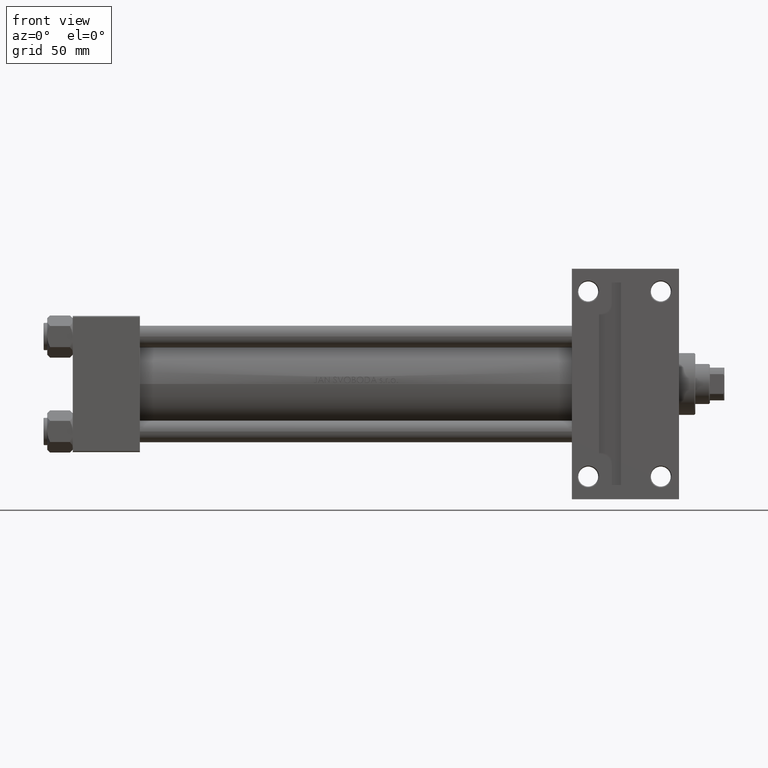
[diagram: clean part render]
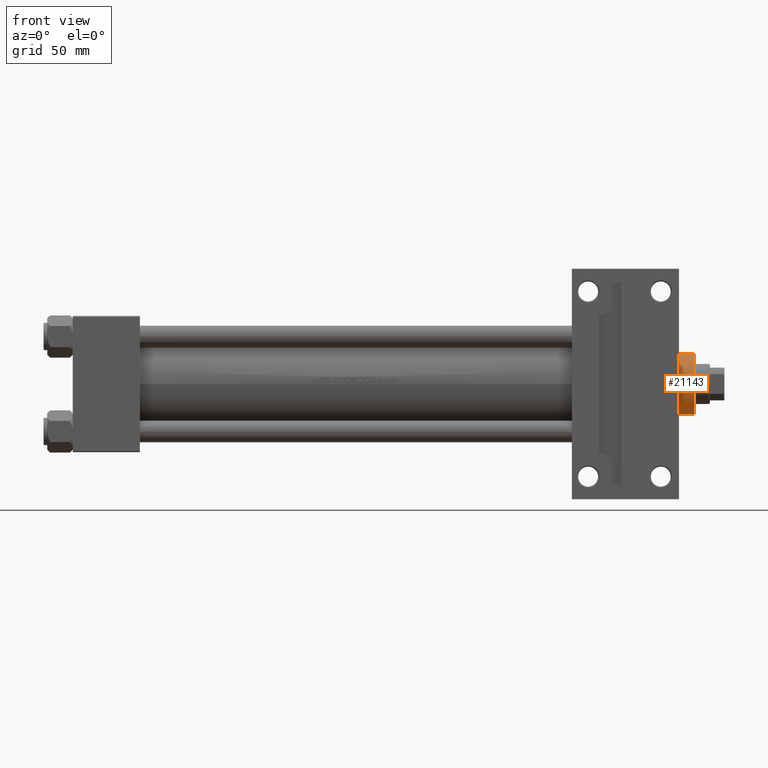
[diagram: same view with one face highlighted and labeled with its STEP entity id]
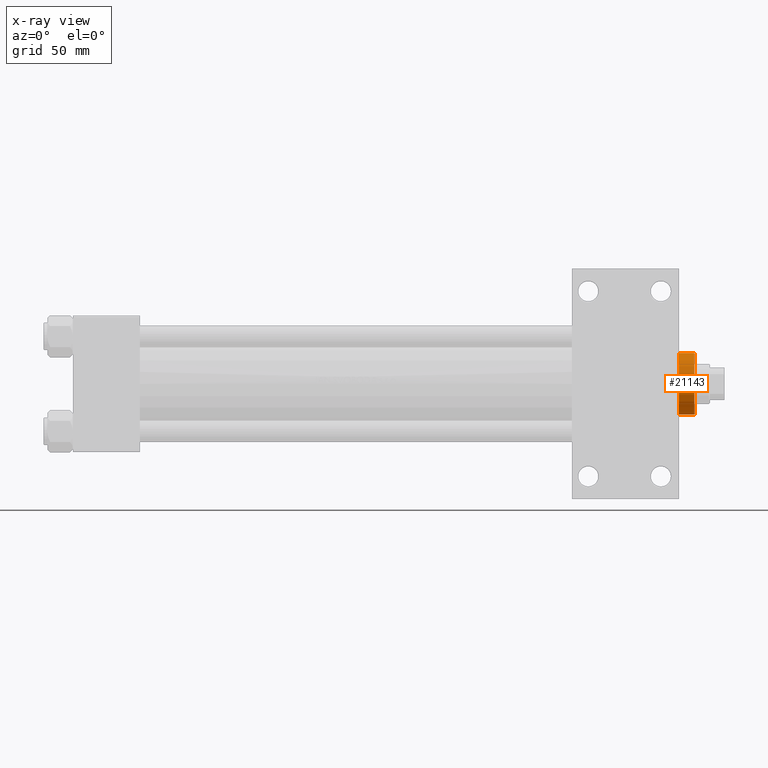
[diagram: x-ray of the same camera — body ghosted, the highlighted face saturated]
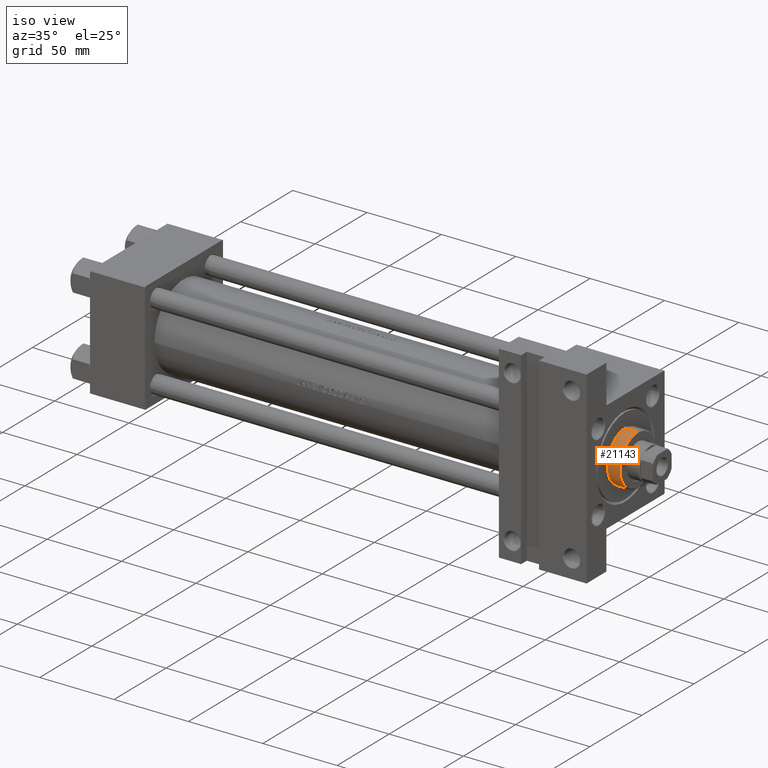
[diagram: same view with one face highlighted and labeled with its STEP entity id]
A machine part, front view. The second image highlights one B-rep face of the part: STEP entity #21143.
The next image is the same camera in x-ray: the body ghosted, the highlighted face saturated — about 0% of this face is hidden behind the body in this view.
A second angle (iso view) of the same face is appended — the face is thin or edge-on in the first view.
In plain terms, the highlighted cylindrical surface (edge-blend (fillet) strip) has radius 17 mm, axis along (-1, 0, 0).
Its self-contained STEP definition (entity closure, byte-faithful):
#512 = EDGE_CURVE ( 'NONE', #3975, #21338, #34119, .T. ) ;
#1441 = CARTESIAN_POINT ( 'NONE',  ( -17.00000000000000000, 0.000000000000000000, 37.69999999999999574 ) ) ;
#3914 = ORIENTED_EDGE ( 'NONE', *, *, #512, .T. ) ;
#3975 = VERTEX_POINT ( 'NONE', #44803 ) ;
#4788 = ORIENTED_EDGE ( 'NONE', *, *, #14811, .T. ) ;
#5723 = FACE_OUTER_BOUND ( 'NONE', #46006, .T. ) ;
#7756 = DIRECTION ( 'NONE',  ( -1.000000000000000000, 0.000000000000000000, 0.000000000000000000 ) ) ;
#10027 = VECTOR ( 'NONE', #42047, 1000.000000000000000 ) ;
#10936 = CARTESIAN_POINT ( 'NONE',  ( 0.000000000000000000, 0.000000000000000000, 37.19999999999999574 ) ) ;
#12101 = DIRECTION ( 'NONE',  ( 1.000000000000000000, 0.000000000000000000, 0.000000000000000000 ) ) ;
#12521 = DIRECTION ( 'NONE',  ( -0.000000000000000000, -0.000000000000000000, -1.000000000000000000 ) ) ;
#14519 = AXIS2_PLACEMENT_3D ( 'NONE', #45773, #38558, #12101 ) ;
#14811 = EDGE_CURVE ( 'NONE', #47015, #3975, #41058, .T. ) ;
#16144 = LINE ( 'NONE', #1441, #21848 ) ;
#17057 = CARTESIAN_POINT ( 'NONE',  ( 17.00000000000000000, 2.081899558550500280E-15, 28.69999999999999929 ) ) ;
#21143 = ADVANCED_FACE ( 'NONE', ( #5723 ), #33516, .T. ) ;
#21338 = VERTEX_POINT ( 'NONE', #17057 ) ;
#21848 = VECTOR ( 'NONE', #12521, 1000.000000000000000 ) ;
#23766 = CARTESIAN_POINT ( 'NONE',  ( 17.00000000000000000, 2.081899558550500280E-15, 37.69999999999999574 ) ) ;
#29002 = EDGE_CURVE ( 'NONE', #21338, #29383, #43690, .T. ) ;
#29145 = ORIENTED_EDGE ( 'NONE', *, *, #29002, .T. ) ;
#29383 = VERTEX_POINT ( 'NONE', #45956 ) ;
#33516 = CYLINDRICAL_SURFACE ( 'NONE', #39721, 17.00000000000000000 ) ;
#34119 = LINE ( 'NONE', #23766, #10027 ) ;
#35098 = CARTESIAN_POINT ( 'NONE',  ( 0.000000000000000000, 0.000000000000000000, 37.69999999999999574 ) ) ;
#35712 = DIRECTION ( 'NONE',  ( 1.000000000000000000, 0.000000000000000000, 0.000000000000000000 ) ) ;
#36202 = DIRECTION ( 'NONE',  ( 0.000000000000000000, 0.000000000000000000, -1.000000000000000000 ) ) ;
#38558 = DIRECTION ( 'NONE',  ( 0.000000000000000000, 0.000000000000000000, 1.000000000000000000 ) ) ;
#39032 = ORIENTED_EDGE ( 'NONE', *, *, #44983, .F. ) ;
#39721 = AXIS2_PLACEMENT_3D ( 'NONE', #35098, #42084, #7756 ) ;
#40278 = AXIS2_PLACEMENT_3D ( 'NONE', #10936, #36202, #35712 ) ;
#41058 = CIRCLE ( 'NONE', #40278, 17.00000000000000000 ) ;
#42047 = DIRECTION ( 'NONE',  ( -0.000000000000000000, -0.000000000000000000, -1.000000000000000000 ) ) ;
#42084 = DIRECTION ( 'NONE',  ( -0.000000000000000000, -0.000000000000000000, -1.000000000000000000 ) ) ;
#43690 = CIRCLE ( 'NONE', #14519, 17.00000000000000000 ) ;
#43931 = CARTESIAN_POINT ( 'NONE',  ( -17.00000000000000000, 0.000000000000000000, 37.19999999999999574 ) ) ;
#44803 = CARTESIAN_POINT ( 'NONE',  ( 17.00000000000000000, 2.081899558550500280E-15, 37.19999999999999574 ) ) ;
#44983 = EDGE_CURVE ( 'NONE', #47015, #29383, #16144, .T. ) ;
#45773 = CARTESIAN_POINT ( 'NONE',  ( 0.000000000000000000, 0.000000000000000000, 28.69999999999999929 ) ) ;
#45956 = CARTESIAN_POINT ( 'NONE',  ( -17.00000000000000000, 0.000000000000000000, 28.69999999999999929 ) ) ;
#46006 = EDGE_LOOP ( 'NONE', ( #4788, #3914, #29145, #39032 ) ) ;
#47015 = VERTEX_POINT ( 'NONE', #43931 ) ;